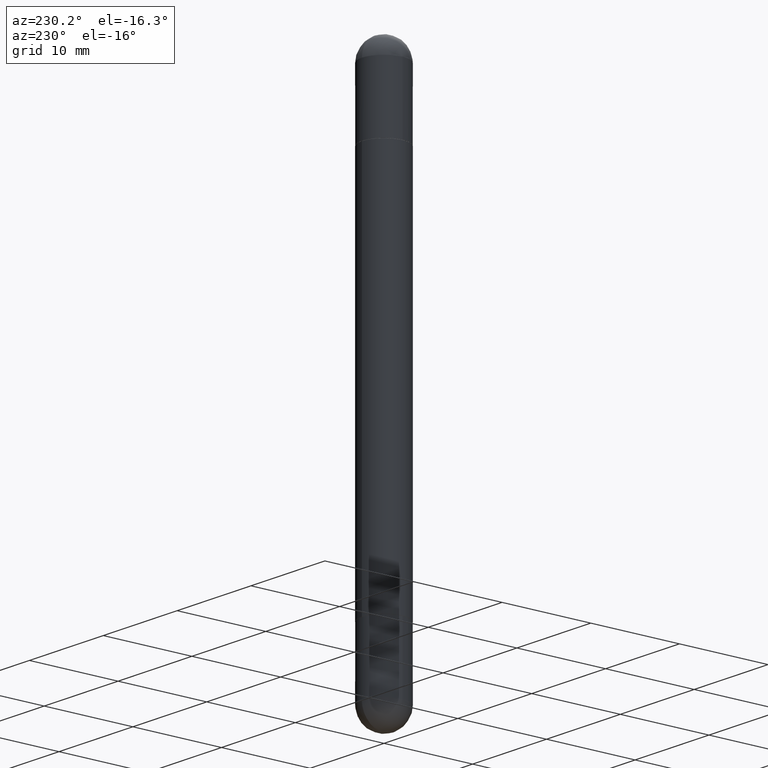
[diagram: clean part render]
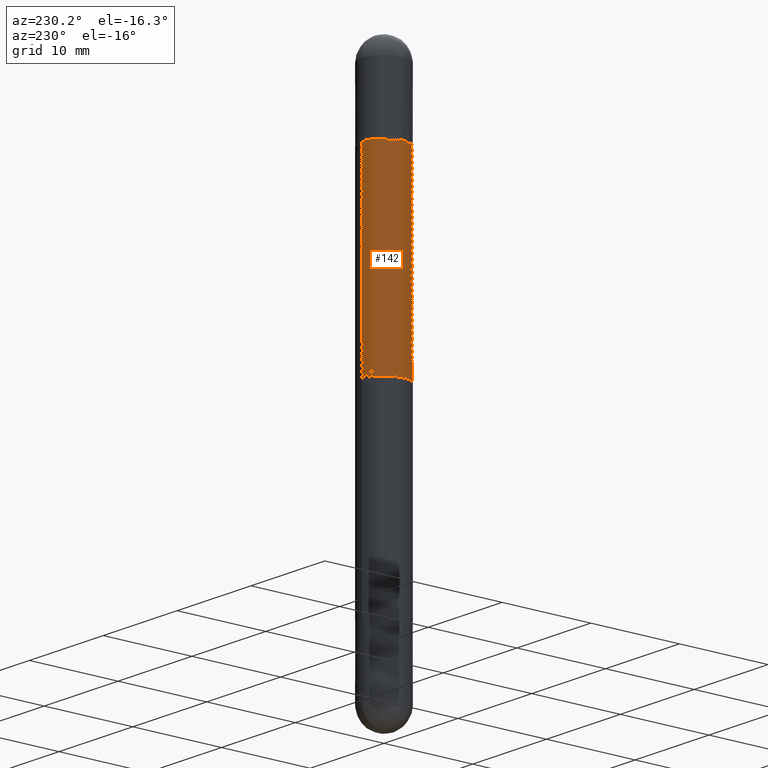
[diagram: same view with one face highlighted and labeled with its STEP entity id]
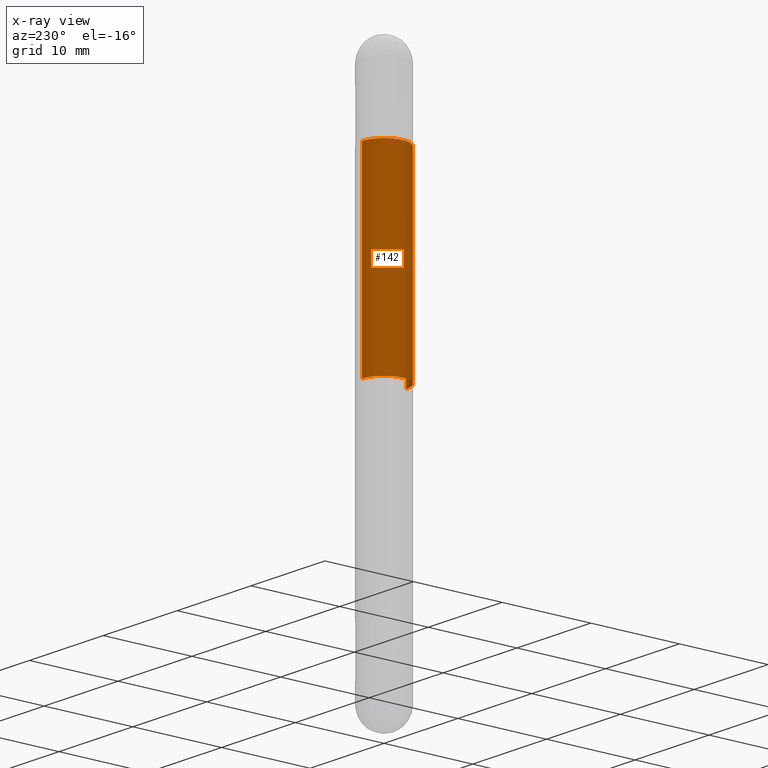
[diagram: x-ray of the same camera — body ghosted, the highlighted face saturated]
A machine part, auxiliary view. The second image highlights one B-rep face of the part: STEP entity #142.
The next image is the same camera in x-ray: the body ghosted, the highlighted face saturated — about 0% of this face is hidden behind the body in this view.
In plain terms, the highlighted cylindrical surface (edge-blend (fillet) strip) has radius 2.5006 mm, axis along (-0, 0, -1).
Its self-contained STEP definition (entity closure, byte-faithful):
#9 = EDGE_CURVE ( 'NONE', #498, #541, #654, .T. ) ;
#33 = DIRECTION ( 'NONE',  ( -6.982962677686265922E-15, -1.000000000000000000, -3.468572871589965081E-15 ) ) ;
#59 = AXIS2_PLACEMENT_3D ( 'NONE', #620, #301, #605 ) ;
#76 = DIRECTION ( 'NONE',  ( 2.445620201970747943E-29, -3.491264531461236863E-15, 1.000000000000000000 ) ) ;
#120 = LINE ( 'NONE', #507, #783 ) ;
#123 = AXIS2_PLACEMENT_3D ( 'NONE', #797, #239, #551 ) ;
#142 = ADVANCED_FACE ( 'NONE', ( #803 ), #418, .T. ) ;
#153 = CARTESIAN_POINT ( 'NONE',  ( -6.874726756181635521E-16, -0.09845000000000754536, -0.3947000000000003839 ) ) ;
#179 = AXIS2_PLACEMENT_3D ( 'NONE', #661, #76, #33 ) ;
#223 = ORIENTED_EDGE ( 'NONE', *, *, #650, .F. ) ;
#239 = DIRECTION ( 'NONE',  ( -0.000000000000000000, -0.000000000000000000, -1.000000000000000000 ) ) ;
#260 = EDGE_LOOP ( 'NONE', ( #452, #753, #223, #327 ) ) ;
#294 = LINE ( 'NONE', #740, #708 ) ;
#299 = CIRCLE ( 'NONE', #123, 0.09845000000000013463 ) ;
#301 = DIRECTION ( 'NONE',  ( -2.445620201970747943E-29, 3.491264531461236863E-15, -1.000000000000000000 ) ) ;
#327 = ORIENTED_EDGE ( 'NONE', *, *, #375, .F. ) ;
#366 = CARTESIAN_POINT ( 'NONE',  ( 6.754160278806588773E-16, 0.09844999999999579088, -1.240150000000000086 ) ) ;
#368 = DIRECTION ( 'NONE',  ( -2.445620201970747943E-29, 3.491264531461236468E-15, -1.000000000000000000 ) ) ;
#375 = EDGE_CURVE ( 'NONE', #541, #577, #120, .T. ) ;
#418 = CYLINDRICAL_SURFACE ( 'NONE', #59, 0.09845000000000013463 ) ;
#452 = ORIENTED_EDGE ( 'NONE', *, *, #9, .F. ) ;
#498 = VERTEX_POINT ( 'NONE', #660 ) ;
#507 = CARTESIAN_POINT ( 'NONE',  ( -6.874726756182137434E-16, -0.09845000000000013463, -2.480300000000001059 ) ) ;
#541 = VERTEX_POINT ( 'NONE', #153 ) ;
#546 = DIRECTION ( 'NONE',  ( -2.445620201970747943E-29, 3.491264531461236468E-15, -1.000000000000000000 ) ) ;
#551 = DIRECTION ( 'NONE',  ( -1.000000000000000000, 0.000000000000000000, 0.000000000000000000 ) ) ;
#577 = VERTEX_POINT ( 'NONE', #579 ) ;
#579 = CARTESIAN_POINT ( 'NONE',  ( -6.874726756181731170E-16, -0.09845000000000446450, -1.240150000000000086 ) ) ;
#605 = DIRECTION ( 'NONE',  ( -6.982962677686265133E-15, -1.000000000000000000, -5.549716594543950441E-15 ) ) ;
#619 = EDGE_CURVE ( 'NONE', #498, #637, #294, .T. ) ;
#620 = CARTESIAN_POINT ( 'NONE',  ( 0.000000000000000000, 0.000000000000000000, -2.480300000000000171 ) ) ;
#637 = VERTEX_POINT ( 'NONE', #366 ) ;
#650 = EDGE_CURVE ( 'NONE', #577, #637, #299, .T. ) ;
#654 = CIRCLE ( 'NONE', #179, 0.09845000000000024565 ) ;
#660 = CARTESIAN_POINT ( 'NONE',  ( 6.754160278806600606E-16, 0.09844999999999295981, -0.3946999999999996622 ) ) ;
#661 = CARTESIAN_POINT ( 'NONE',  ( 5.100585493230192921E-29, -7.281381306815556828E-15, -0.3947000000000000508 ) ) ;
#708 = VECTOR ( 'NONE', #546, 39.37007874015748143 ) ;
#740 = CARTESIAN_POINT ( 'NONE',  ( 6.754160278806080944E-16, 0.09845000000000013463, -2.480299999999999727 ) ) ;
#753 = ORIENTED_EDGE ( 'NONE', *, *, #619, .T. ) ;
#783 = VECTOR ( 'NONE', #368, 39.37007874015748143 ) ;
#797 = CARTESIAN_POINT ( 'NONE',  ( 3.032935893474023384E-29, -4.329691708691653720E-15, -1.240150000000000086 ) ) ;
#803 = FACE_OUTER_BOUND ( 'NONE', #260, .T. ) ;